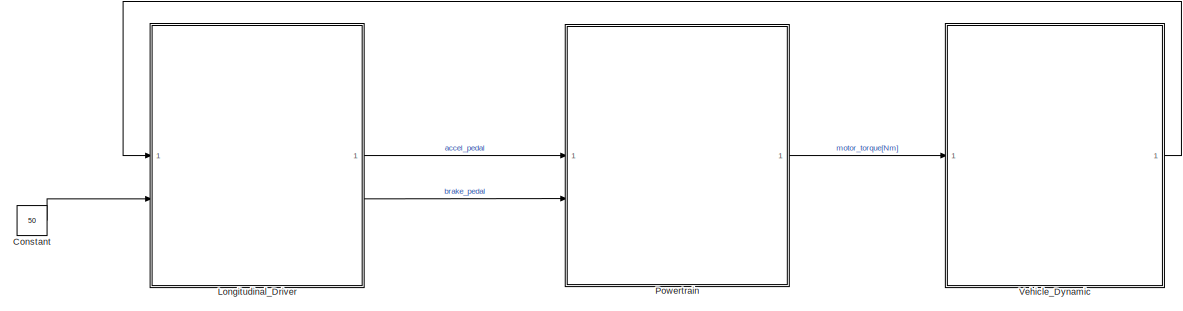
[diagram: root canvas - part 1/2, right side, full height]
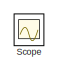
[diagram: root canvas - part 2/2, bottom left region]
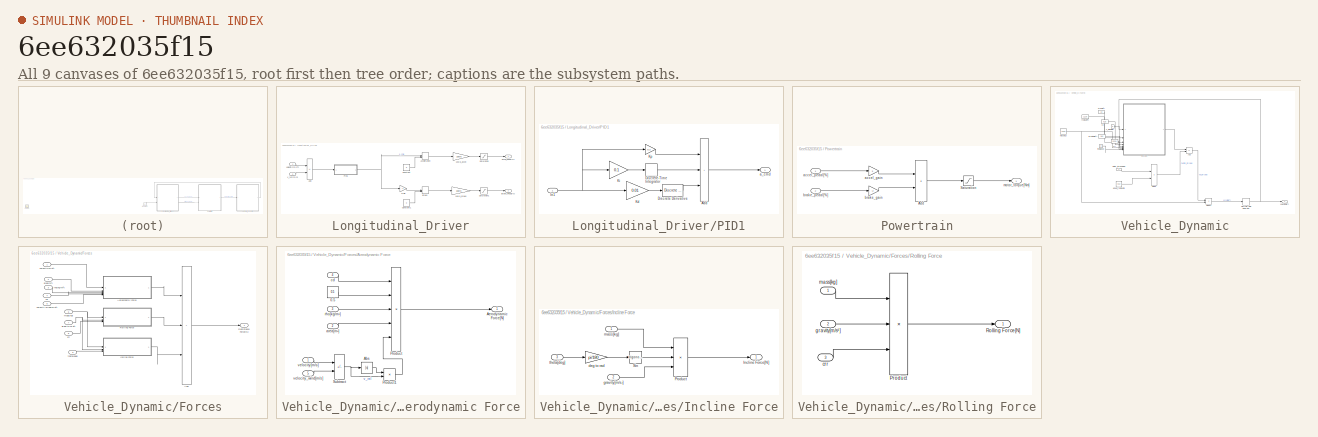
[diagram: thumbnail index - all 9 canvases of the model, root first then tree order]
MODEL slx_6ee632035f15
KIND model
CONFIG AbsTol = auto
CONFIG EnableMultiTasking = off
CONFIG FixedStep = 1e-3
CONFIG MaxStep = auto
CONFIG MinStep = auto
CONFIG RelTol = 1e-3
CONFIG SampleTimeConstraint = Unconstrained
CONFIG SolverName = FixedStepDiscrete
CONFIG StartTime = 0.0
CONFIG StopTime = inf
BLOCK [Constant] Constant
  Value = 50
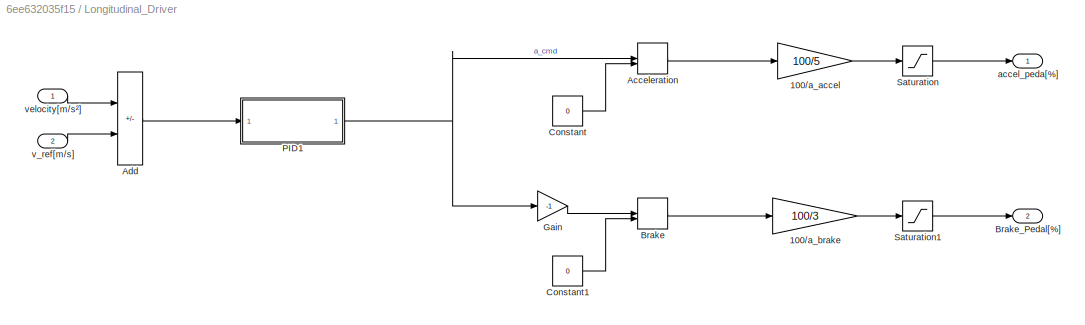
BLOCK [SubSystem] Longitudinal_Driver
BLOCK [Gain] Longitudinal_Driver/100//a_accel
  Gain = 100/5
BLOCK [Gain] Longitudinal_Driver/100//a_brake
  Gain = 100/3
BLOCK [MinMax] Longitudinal_Driver/Acceleration
  Function = max
  Inputs = 2
BLOCK [Sum] Longitudinal_Driver/Add
  IconShape = rectangular
  Inputs = -+
BLOCK [MinMax] Longitudinal_Driver/Brake
  Function = max
  Inputs = 2
BLOCK [Outport] Longitudinal_Driver/Brake_Pedal[%]
  Port = 2
BLOCK [Constant] Longitudinal_Driver/Constant
  Value = 0
BLOCK [Constant] Longitudinal_Driver/Constant1
  Value = 0
BLOCK [Gain] Longitudinal_Driver/Gain
  Gain = -1
BLOCK [SubSystem] Longitudinal_Driver/PID1
BLOCK [Sum] Longitudinal_Driver/PID1/Add
  IconShape = rectangular
  Inputs = +++
BLOCK [Reference] Longitudinal_Driver/PID1/Discrete Derivative  REF=simulink/Discrete/Discrete Derivative
  SourceBlock = simulink/Discrete/Discrete Derivative
  SourceType = Discrete Derivative
BLOCK [DiscreteIntegrator] Longitudinal_Driver/PID1/Discrete-Time Integrator
  ICPrevOutput = DiscIntNeverNeededParam
  ICPrevScaledInput = DiscIntNeverNeededParam
  InitialConditionSetting = Auto
  SampleTime = -1
BLOCK [Inport] Longitudinal_Driver/PID1/In1
BLOCK [Gain] Longitudinal_Driver/PID1/Kd
  Gain = 0.01
BLOCK [Gain] Longitudinal_Driver/PID1/Ki
  Gain = 0.1
BLOCK [Gain] Longitudinal_Driver/PID1/Kp
  Gain = 0.2
BLOCK [Outport] Longitudinal_Driver/PID1/a_cmd
BLOCK [Saturate] Longitudinal_Driver/Saturation
  LowerLimit = 0
  UpperLimit = 100
BLOCK [Saturate] Longitudinal_Driver/Saturation1
  LowerLimit = 0
  UpperLimit = 100
BLOCK [Outport] Longitudinal_Driver/accel_peda[%]
BLOCK [Inport] Longitudinal_Driver/v_ref[m//s]
  Port = 2
BLOCK [Inport] Longitudinal_Driver/velocity[m//s²]
BLOCK [SubSystem] Powertrain
BLOCK [Sum] Powertrain/Add
  IconShape = rectangular
BLOCK [Saturate] Powertrain/Saturation
  LowerLimit = -150
  UpperLimit = 300
BLOCK [Gain] Powertrain/accel_gain
  Gain = 3
BLOCK [Inport] Powertrain/accel_pedal[%]
BLOCK [Gain] Powertrain/brake_gain
  Gain = -2
BLOCK [Inport] Powertrain/brake_pedal[%]
  Port = 2
BLOCK [Outport] Powertrain/motor_torque[Nm]
BLOCK [Scope] Scope
  ActiveDisplayYMaximum = 50
  ActiveDisplayYMinimum = 30
  DataLoggingVariableName = ScopeData1
  Floating = off
  GraphicalSettings = {"Style":{"BackgroundColor":[0.12941176470588237,0.12941176470588237,0.12941176470588237],"AxesColor":[0.07058823529411765,0.07058823529411765,0.07058823529411765],"LabelsColor":[0.8509803921568627,0.8509803921568627,0.8509803921568627],"PreserveColors":false,"Visible":[true],"LineStyle":["-"],"LineWidth":[1.5],"BarWidth":[0.9],"LineColor":["auto"],"LineFaceAlpha":[1],"LineEdgeAlpha":[1],"Marker":...<+1907ch>
  IOType = viewer
  MultipleDisplayCache = [{"MaxYLimMag":50,"MaxYLimReal":50,"MinYLimMag":30,"MinYLimReal":30,"PlotAsMagnitudePhase":false,"ShowGrid":true,"ShowLegend":false,"Title":"%<SignalLabel>","YLabel":""}]
  NumInputPorts = 1
  ScopeFrameLocation = window
  WasSavedAsWebScope = on
  WindowPosition = [573.000000,323.000000,560.000000,420.000000,]
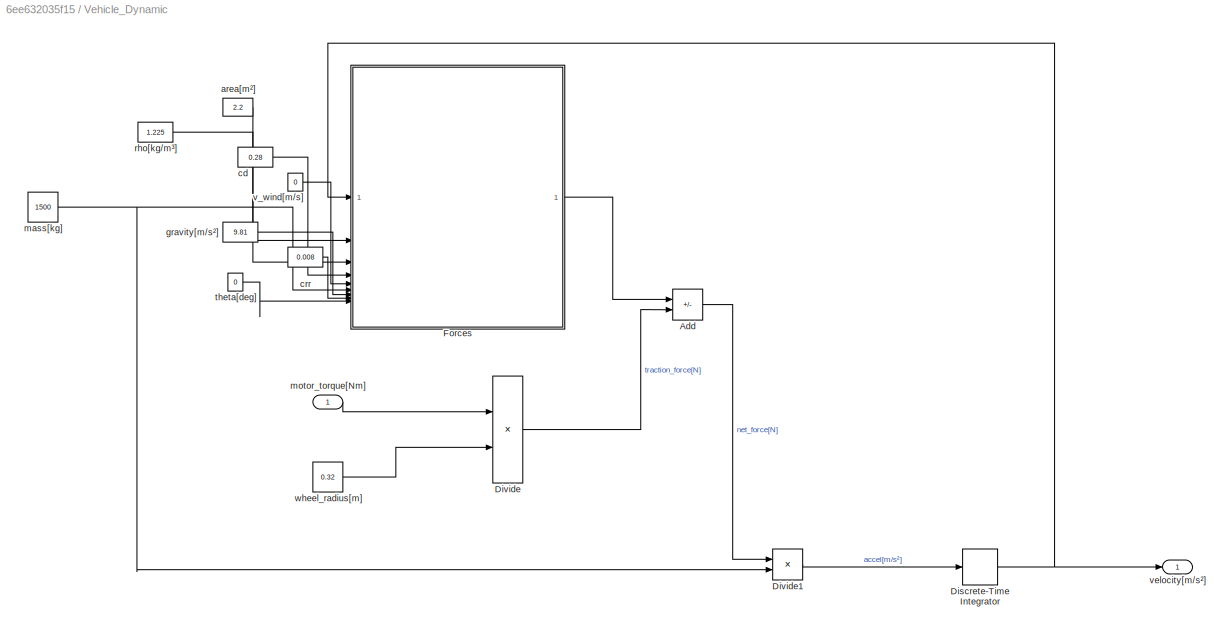
BLOCK [SubSystem] Vehicle_Dynamic
BLOCK [Sum] Vehicle_Dynamic/Add
  IconShape = rectangular
  Inputs = -+
BLOCK [DiscreteIntegrator] Vehicle_Dynamic/Discrete-Time Integrator
  ICPrevOutput = DiscIntNeverNeededParam
  ICPrevScaledInput = DiscIntNeverNeededParam
  InitialConditionSetting = Auto
  LimitOutput = on
  SampleTime = -1
BLOCK [Product] Vehicle_Dynamic/Divide
  Inputs = */
BLOCK [Product] Vehicle_Dynamic/Divide1
  Inputs = */
BLOCK [SubSystem] Vehicle_Dynamic/Forces
BLOCK [Sum] Vehicle_Dynamic/Forces/Add
  IconShape = rectangular
  Inputs = +++
BLOCK [SubSystem] Vehicle_Dynamic/Forces/Aerodynamic Force
BLOCK [Constant] Vehicle_Dynamic/Forces/Aerodynamic Force/0.5
  Value = 0.5
BLOCK [Abs] Vehicle_Dynamic/Forces/Aerodynamic Force/Abs
  SaturateOnIntegerOverflow = off
BLOCK [Outport] Vehicle_Dynamic/Forces/Aerodynamic Force/Aerodynamic Force[N]
BLOCK [Product] Vehicle_Dynamic/Forces/Aerodynamic Force/Product
  Inputs = 5
BLOCK [Product] Vehicle_Dynamic/Forces/Aerodynamic Force/Product1
BLOCK [Sum] Vehicle_Dynamic/Forces/Aerodynamic Force/Subtract
  IconShape = rectangular
  Inputs = +-
BLOCK [Inport] Vehicle_Dynamic/Forces/Aerodynamic Force/area[m²]
  Port = 2
BLOCK [Inport] Vehicle_Dynamic/Forces/Aerodynamic Force/cd
  Port = 4
BLOCK [Inport] Vehicle_Dynamic/Forces/Aerodynamic Force/rho[kg//m³]
  Port = 3
BLOCK [Inport] Vehicle_Dynamic/Forces/Aerodynamic Force/velocity[m//s]
BLOCK [Inport] Vehicle_Dynamic/Forces/Aerodynamic Force/velocity_wind[m//s]
  Port = 5
BLOCK [SubSystem] Vehicle_Dynamic/Forces/Incline Force
BLOCK [Outport] Vehicle_Dynamic/Forces/Incline Force/Incline Force[N]
BLOCK [Product] Vehicle_Dynamic/Forces/Incline Force/Product
  Inputs = 3
BLOCK [Trigonometry] Vehicle_Dynamic/Forces/Incline Force/Sin
BLOCK [Gain] Vehicle_Dynamic/Forces/Incline Force/deg to rad
  Gain = pi/180
BLOCK [Inport] Vehicle_Dynamic/Forces/Incline Force/gravity[m//s²]
  Port = 2
BLOCK [Inport] Vehicle_Dynamic/Forces/Incline Force/mass]kg]
BLOCK [Inport] Vehicle_Dynamic/Forces/Incline Force/theta[deg]
  Port = 3
BLOCK [Outport] Vehicle_Dynamic/Forces/Resistance Force[N]
BLOCK [SubSystem] Vehicle_Dynamic/Forces/Rolling Force
BLOCK [Product] Vehicle_Dynamic/Forces/Rolling Force/Product
  Inputs = 3
BLOCK [Outport] Vehicle_Dynamic/Forces/Rolling Force/Rolling Force[N]
BLOCK [Inport] Vehicle_Dynamic/Forces/Rolling Force/crr
  Port = 3
BLOCK [Inport] Vehicle_Dynamic/Forces/Rolling Force/gravity[m//s²]
  Port = 2
BLOCK [Inport] Vehicle_Dynamic/Forces/Rolling Force/mass[kg]
BLOCK [Inport] Vehicle_Dynamic/Forces/area[m²]
  Port = 2
BLOCK [Inport] Vehicle_Dynamic/Forces/cd
  Port = 4
BLOCK [Inport] Vehicle_Dynamic/Forces/crr
  Port = 8
BLOCK [Inport] Vehicle_Dynamic/Forces/gravity[m//s²]
  Port = 7
BLOCK [Inport] Vehicle_Dynamic/Forces/mass[kg]
  Port = 6
BLOCK [Inport] Vehicle_Dynamic/Forces/rho[kg//m³]
  Port = 3
BLOCK [Inport] Vehicle_Dynamic/Forces/theta[deg]
  Port = 9
BLOCK [Inport] Vehicle_Dynamic/Forces/velocity wind[m//s²]
  Port = 5
BLOCK [Inport] Vehicle_Dynamic/Forces/velocity[m//s²]
BLOCK [Constant] Vehicle_Dynamic/area[m²]
  Value = 2.2
BLOCK [Constant] Vehicle_Dynamic/cd
  Value = 0.28
BLOCK [Constant] Vehicle_Dynamic/crr
  Value = 0.008
BLOCK [Constant] Vehicle_Dynamic/gravity[m//s²]
  Value = 9.81
BLOCK [Constant] Vehicle_Dynamic/mass[kg]
  Value = 1500
BLOCK [Inport] Vehicle_Dynamic/motor_torque[Nm]
BLOCK [Constant] Vehicle_Dynamic/rho[kg//m³]
  Value = 1.225
BLOCK [Constant] Vehicle_Dynamic/theta[deg]
  Value = 0
BLOCK [Constant] Vehicle_Dynamic/v_wind[m//s]
  Value = 0
BLOCK [Outport] Vehicle_Dynamic/velocity[m//s²]
BLOCK [Constant] Vehicle_Dynamic/wheel_radius[m]
  Value = 0.32
LINE Constant:1 -> Longitudinal_Driver:2
LINE Longitudinal_Driver/100//a_accel:1 -> Longitudinal_Driver/Saturation:1
LINE Longitudinal_Driver/100//a_brake:1 -> Longitudinal_Driver/Saturation1:1
LINE Longitudinal_Driver/Acceleration:1 -> Longitudinal_Driver/100//a_accel:1
LINE Longitudinal_Driver/Add:1 -> Longitudinal_Driver/PID1:1
LINE Longitudinal_Driver/Brake:1 -> Longitudinal_Driver/100//a_brake:1
LINE Longitudinal_Driver/Constant1:1 -> Longitudinal_Driver/Brake:2
LINE Longitudinal_Driver/Constant:1 -> Longitudinal_Driver/Acceleration:2
LINE Longitudinal_Driver/Gain:1 -> Longitudinal_Driver/Brake:1
LINE Longitudinal_Driver/PID1/Add:1 -> Longitudinal_Driver/PID1/a_cmd:1
LINE Longitudinal_Driver/PID1/Discrete Derivative:1 -> Longitudinal_Driver/PID1/Add:3
LINE Longitudinal_Driver/PID1/Discrete-Time Integrator:1 -> Longitudinal_Driver/PID1/Add:2
NET Longitudinal_Driver/PID1/In1:1 -> Longitudinal_Driver/PID1/Kd:1, Longitudinal_Driver/PID1/Ki:1, Longitudinal_Driver/PID1/Kp:1
LINE Longitudinal_Driver/PID1/Kd:1 -> Longitudinal_Driver/PID1/Discrete Derivative:1
LINE Longitudinal_Driver/PID1/Ki:1 -> Longitudinal_Driver/PID1/Discrete-Time Integrator:1
LINE Longitudinal_Driver/PID1/Kp:1 -> Longitudinal_Driver/PID1/Add:1
NET Longitudinal_Driver/PID1:1 -> Longitudinal_Driver/Acceleration:1, Longitudinal_Driver/Gain:1
LINE Longitudinal_Driver/Saturation1:1 -> Longitudinal_Driver/Brake_Pedal[%]:1
LINE Longitudinal_Driver/Saturation:1 -> Longitudinal_Driver/accel_peda[%]:1
LINE Longitudinal_Driver/v_ref[m//s]:1 -> Longitudinal_Driver/Add:2
LINE Longitudinal_Driver/velocity[m//s²]:1 -> Longitudinal_Driver/Add:1
LINE Longitudinal_Driver:1 -> Powertrain:1
LINE Longitudinal_Driver:2 -> Powertrain:2
LINE Powertrain/Add:1 -> Powertrain/Saturation:1
LINE Powertrain/Saturation:1 -> Powertrain/motor_torque[Nm]:1
LINE Powertrain/accel_gain:1 -> Powertrain/Add:1
LINE Powertrain/accel_pedal[%]:1 -> Powertrain/accel_gain:1
LINE Powertrain/brake_gain:1 -> Powertrain/Add:2
LINE Powertrain/brake_pedal[%]:1 -> Powertrain/brake_gain:1
LINE Powertrain:1 -> Vehicle_Dynamic:1
LINE Vehicle_Dynamic/Add:1 -> Vehicle_Dynamic/Divide1:1
NET Vehicle_Dynamic/Discrete-Time Integrator:1 -> Vehicle_Dynamic/Forces:1, Vehicle_Dynamic/velocity[m//s²]:1
LINE Vehicle_Dynamic/Divide1:1 -> Vehicle_Dynamic/Discrete-Time Integrator:1
LINE Vehicle_Dynamic/Divide:1 -> Vehicle_Dynamic/Add:2
LINE Vehicle_Dynamic/Forces/Add:1 -> Vehicle_Dynamic/Forces/Resistance Force[N]:1
LINE Vehicle_Dynamic/Forces/Aerodynamic Force/0.5:1 -> Vehicle_Dynamic/Forces/Aerodynamic Force/Product:2
LINE Vehicle_Dynamic/Forces/Aerodynamic Force/Abs:1 -> Vehicle_Dynamic/Forces/Aerodynamic Force/Product1:1
LINE Vehicle_Dynamic/Forces/Aerodynamic Force/Product1:1 -> Vehicle_Dynamic/Forces/Aerodynamic Force/Product:5
LINE Vehicle_Dynamic/Forces/Aerodynamic Force/Product:1 -> Vehicle_Dynamic/Forces/Aerodynamic Force/Aerodynamic Force[N]:1
NET Vehicle_Dynamic/Forces/Aerodynamic Force/Subtract:1 -> Vehicle_Dynamic/Forces/Aerodynamic Force/Abs:1, Vehicle_Dynamic/Forces/Aerodynamic Force/Product1:2
LINE Vehicle_Dynamic/Forces/Aerodynamic Force/area[m²]:1 -> Vehicle_Dynamic/Forces/Aerodynamic Force/Product:4
LINE Vehicle_Dynamic/Forces/Aerodynamic Force/cd:1 -> Vehicle_Dynamic/Forces/Aerodynamic Force/Product:1
LINE Vehicle_Dynamic/Forces/Aerodynamic Force/rho[kg//m³]:1 -> Vehicle_Dynamic/Forces/Aerodynamic Force/Product:3
LINE Vehicle_Dynamic/Forces/Aerodynamic Force/velocity[m//s]:1 -> Vehicle_Dynamic/Forces/Aerodynamic Force/Subtract:1
LINE Vehicle_Dynamic/Forces/Aerodynamic Force/velocity_wind[m//s]:1 -> Vehicle_Dynamic/Forces/Aerodynamic Force/Subtract:2
LINE Vehicle_Dynamic/Forces/Aerodynamic Force:1 -> Vehicle_Dynamic/Forces/Add:1
LINE Vehicle_Dynamic/Forces/Incline Force/Product:1 -> Vehicle_Dynamic/Forces/Incline Force/Incline Force[N]:1
LINE Vehicle_Dynamic/Forces/Incline Force/Sin:1 -> Vehicle_Dynamic/Forces/Incline Force/Product:2
LINE Vehicle_Dynamic/Forces/Incline Force/deg to rad:1 -> Vehicle_Dynamic/Forces/Incline Force/Sin:1
LINE Vehicle_Dynamic/Forces/Incline Force/gravity[m//s²]:1 -> Vehicle_Dynamic/Forces/Incline Force/Product:3
LINE Vehicle_Dynamic/Forces/Incline Force/mass]kg]:1 -> Vehicle_Dynamic/Forces/Incline Force/Product:1
LINE Vehicle_Dynamic/Forces/Incline Force/theta[deg]:1 -> Vehicle_Dynamic/Forces/Incline Force/deg to rad:1
LINE Vehicle_Dynamic/Forces/Incline Force:1 -> Vehicle_Dynamic/Forces/Add:3
LINE Vehicle_Dynamic/Forces/Rolling Force/Product:1 -> Vehicle_Dynamic/Forces/Rolling Force/Rolling Force[N]:1
LINE Vehicle_Dynamic/Forces/Rolling Force/crr:1 -> Vehicle_Dynamic/Forces/Rolling Force/Product:3
LINE Vehicle_Dynamic/Forces/Rolling Force/gravity[m//s²]:1 -> Vehicle_Dynamic/Forces/Rolling Force/Product:2
LINE Vehicle_Dynamic/Forces/Rolling Force/mass[kg]:1 -> Vehicle_Dynamic/Forces/Rolling Force/Product:1
LINE Vehicle_Dynamic/Forces/Rolling Force:1 -> Vehicle_Dynamic/Forces/Add:2
LINE Vehicle_Dynamic/Forces/area[m²]:1 -> Vehicle_Dynamic/Forces/Aerodynamic Force:2
LINE Vehicle_Dynamic/Forces/cd:1 -> Vehicle_Dynamic/Forces/Aerodynamic Force:4
LINE Vehicle_Dynamic/Forces/crr:1 -> Vehicle_Dynamic/Forces/Rolling Force:3
NET Vehicle_Dynamic/Forces/gravity[m//s²]:1 -> Vehicle_Dynamic/Forces/Incline Force:2, Vehicle_Dynamic/Forces/Rolling Force:2
NET Vehicle_Dynamic/Forces/mass[kg]:1 -> Vehicle_Dynamic/Forces/Incline Force:1, Vehicle_Dynamic/Forces/Rolling Force:1
LINE Vehicle_Dynamic/Forces/rho[kg//m³]:1 -> Vehicle_Dynamic/Forces/Aerodynamic Force:3
LINE Vehicle_Dynamic/Forces/theta[deg]:1 -> Vehicle_Dynamic/Forces/Incline Force:3
LINE Vehicle_Dynamic/Forces/velocity wind[m//s²]:1 -> Vehicle_Dynamic/Forces/Aerodynamic Force:5
LINE Vehicle_Dynamic/Forces/velocity[m//s²]:1 -> Vehicle_Dynamic/Forces/Aerodynamic Force:1
LINE Vehicle_Dynamic/Forces:1 -> Vehicle_Dynamic/Add:1
LINE Vehicle_Dynamic/area[m²]:1 -> Vehicle_Dynamic/Forces:2
LINE Vehicle_Dynamic/cd:1 -> Vehicle_Dynamic/Forces:4
LINE Vehicle_Dynamic/crr:1 -> Vehicle_Dynamic/Forces:8
LINE Vehicle_Dynamic/gravity[m//s²]:1 -> Vehicle_Dynamic/Forces:7
NET Vehicle_Dynamic/mass[kg]:1 -> Vehicle_Dynamic/Divide1:2, Vehicle_Dynamic/Forces:6
LINE Vehicle_Dynamic/motor_torque[Nm]:1 -> Vehicle_Dynamic/Divide:1
LINE Vehicle_Dynamic/rho[kg//m³]:1 -> Vehicle_Dynamic/Forces:3
LINE Vehicle_Dynamic/theta[deg]:1 -> Vehicle_Dynamic/Forces:9
LINE Vehicle_Dynamic/v_wind[m//s]:1 -> Vehicle_Dynamic/Forces:5
LINE Vehicle_Dynamic/wheel_radius[m]:1 -> Vehicle_Dynamic/Divide:2
LINE Vehicle_Dynamic:1 -> Longitudinal_Driver:1
note: NET lines group one-source signal fan-out (src -> all destinations, sorted); 1:1 wires keep LINE
